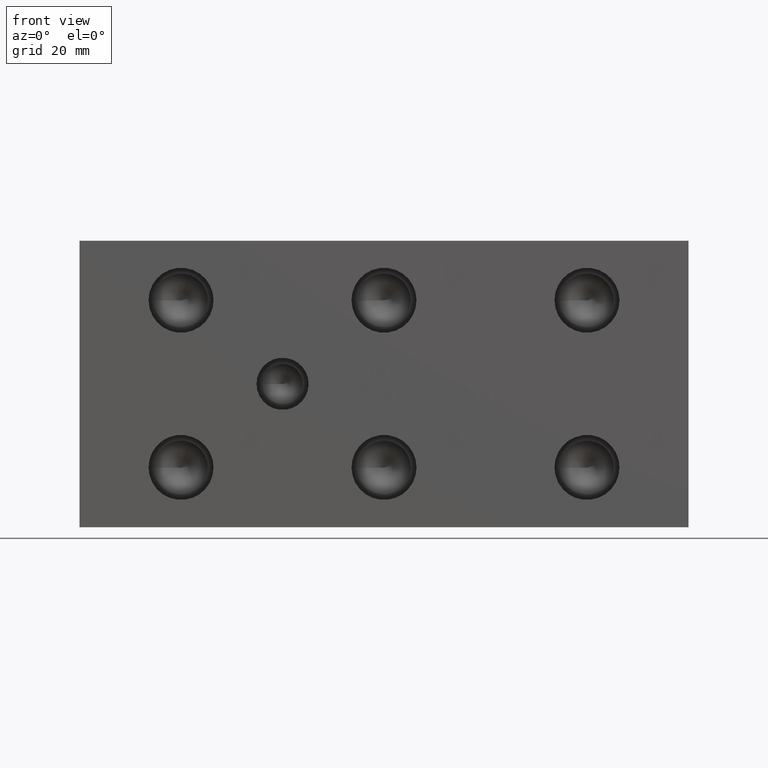
[diagram: clean part render]
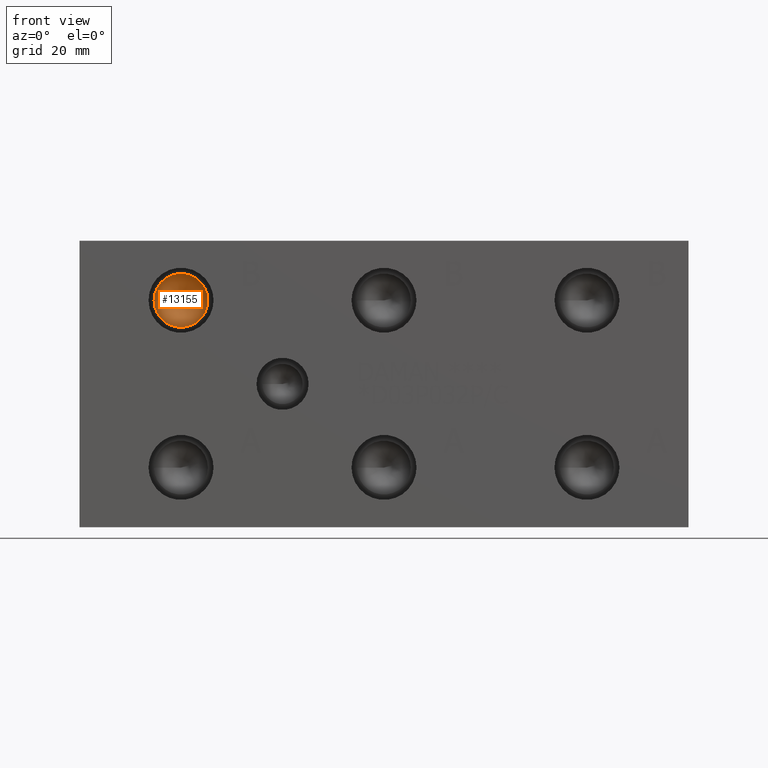
[diagram: same view with one face highlighted and labeled with its STEP entity id]
A machine part, front view. The second image highlights one B-rep face of the part: STEP entity #13155.
In plain terms, the highlighted conical surface has half-angle 60 deg.
Its self-contained STEP definition (entity closure, byte-faithful):
#113=CONICAL_SURFACE('',#13794,3.57505,1.0471975511966);
#267=CIRCLE('',#13795,7.1501);
#268=CIRCLE('',#13796,7.1501);
#1505=FACE_OUTER_BOUND('',#2263,.T.);
#2263=EDGE_LOOP('',(#11370,#11371,#11372,#11373));
#3512=LINE('',#22400,#4697);
#4697=VECTOR('',#16219,3.57505);
#6212=VERTEX_POINT('',#22396);
#6213=VERTEX_POINT('',#22397);
#6214=VERTEX_POINT('',#22399);
#7993=EDGE_CURVE('',#6212,#6213,#267,.T.);
#7994=EDGE_CURVE('',#6213,#6214,#3512,.T.);
#7995=EDGE_CURVE('',#6213,#6212,#268,.T.);
#11370=ORIENTED_EDGE('',*,*,#7993,.T.);
#11371=ORIENTED_EDGE('',*,*,#7994,.T.);
#11372=ORIENTED_EDGE('',*,*,#7994,.F.);
#11373=ORIENTED_EDGE('',*,*,#7995,.T.);
#13155=ADVANCED_FACE('',(#1505),#113,.F.);
#13794=AXIS2_PLACEMENT_3D('',#22395,#16215,#16216);
#13795=AXIS2_PLACEMENT_3D('',#22398,#16217,#16218);
#13796=AXIS2_PLACEMENT_3D('',#22401,#16220,#16221);
#16215=DIRECTION('center_axis',(0.,-1.,0.));
#16216=DIRECTION('ref_axis',(1.,0.,0.));
#16217=DIRECTION('center_axis',(0.,-1.,0.));
#16218=DIRECTION('ref_axis',(1.,0.,0.));
#16219=DIRECTION('',(0.866025403784439,0.5,1.06057523872491E-16));
#16220=DIRECTION('center_axis',(0.,-1.,0.));
#16221=DIRECTION('ref_axis',(1.,0.,0.));
#22395=CARTESIAN_POINT('Origin',(26.9748,14.2116660798664,60.325));
#22396=CARTESIAN_POINT('',(34.1249,12.14761,60.325));
#22397=CARTESIAN_POINT('',(19.8247,12.14761,60.325));
#22398=CARTESIAN_POINT('Origin',(26.9748,12.14761,60.325));
#22399=CARTESIAN_POINT('',(26.9748,16.2757221597327,60.325));
#22400=CARTESIAN_POINT('',(23.39975,14.2116660798664,60.325));
#22401=CARTESIAN_POINT('Origin',(26.9748,12.14761,60.325));